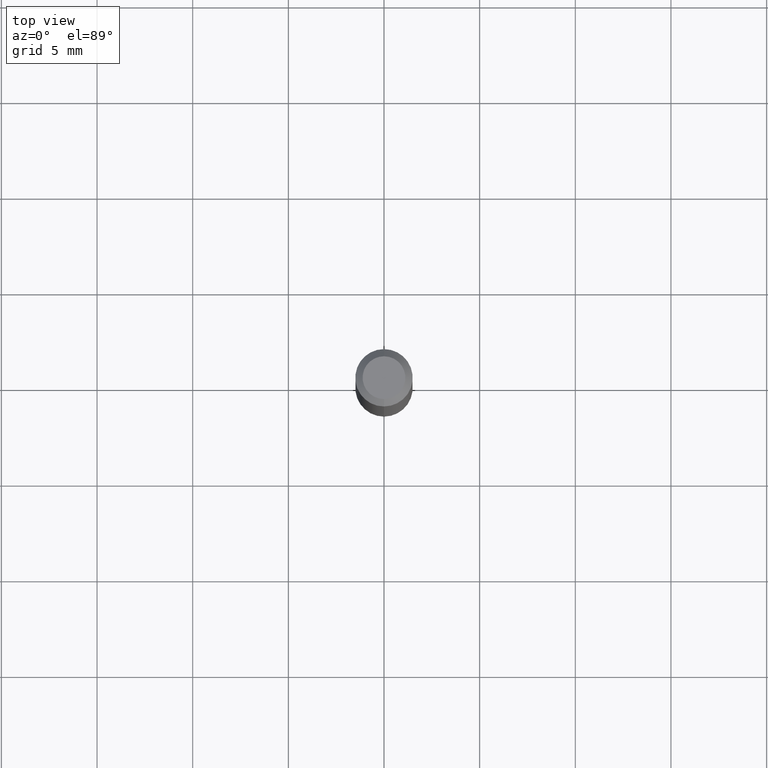
[diagram: clean part render]
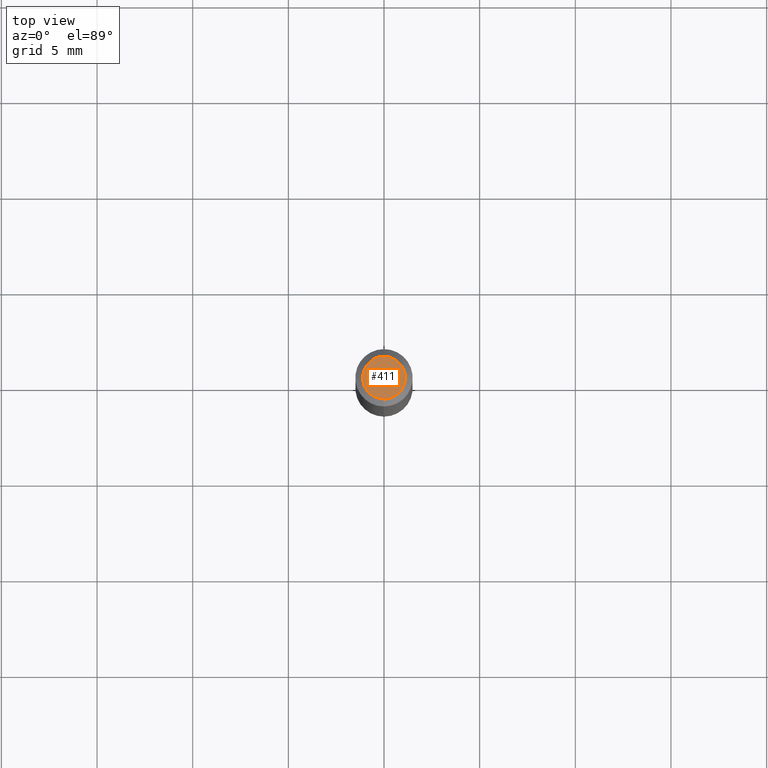
[diagram: same view with one face highlighted and labeled with its STEP entity id]
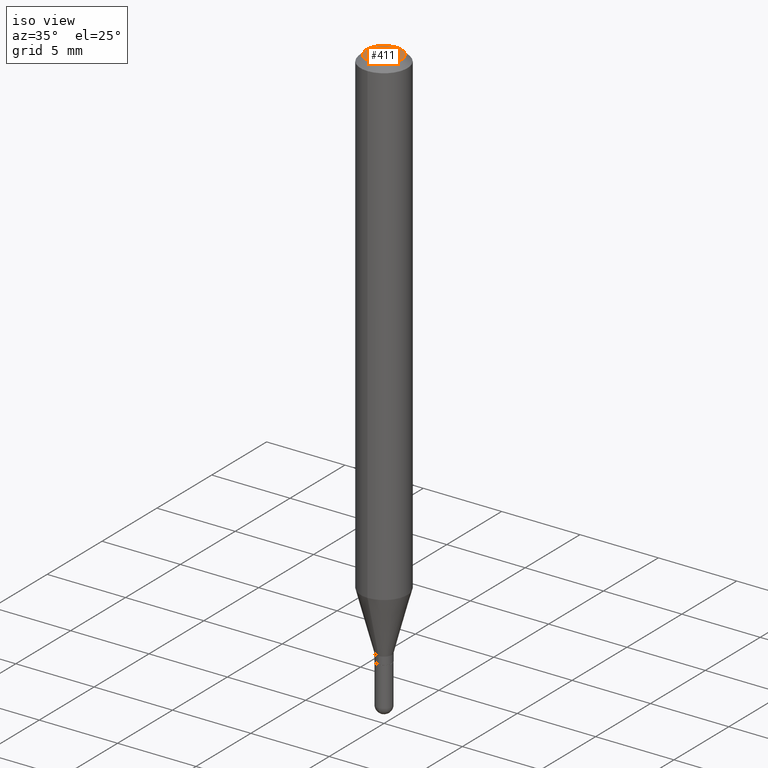
[diagram: same view with one face highlighted and labeled with its STEP entity id]
A machine part, top view. The second image highlights one B-rep face of the part: STEP entity #411.
A second angle (iso view) of the same face is appended — the face is thin or edge-on in the first view.
In plain terms, the highlighted planar face has unit normal (0, -0, -1).
Its self-contained STEP definition (entity closure, byte-faithful):
#4 = EDGE_CURVE ( 'NONE', #191, #498, #394, .T. ) ;
#48 = AXIS2_PLACEMENT_3D ( 'NONE', #88, #126, #160 ) ;
#56 = CARTESIAN_POINT ( 'NONE',  ( 5.838220061560797659E-46, -8.334364404613009200E-32, -2.387209805518527816E-17 ) ) ;
#61 = DIRECTION ( 'NONE',  ( -6.982962677686265133E-15, -1.000000000000000000, 3.491257611855652389E-15 ) ) ;
#83 = CARTESIAN_POINT ( 'NONE',  ( 3.599717260347271507E-16, 0.04404999999999999888, -1.776619958574267450E-16 ) ) ;
#88 = CARTESIAN_POINT ( 'NONE',  ( 5.838220061560797659E-46, -8.334364404613009200E-32, -2.387209805518527816E-17 ) ) ;
#101 = ORIENTED_EDGE ( 'NONE', *, *, #4, .T. ) ;
#126 = DIRECTION ( 'NONE',  ( -2.445625033905502397E-29, 3.491257611855651995E-15, 1.000000000000000000 ) ) ;
#134 = CIRCLE ( 'NONE', #402, 0.04404999999999999888 ) ;
#152 = DIRECTION ( 'NONE',  ( 6.982962677686265922E-15, 1.000000000000000000, -3.491257611855652389E-15 ) ) ;
#160 = DIRECTION ( 'NONE',  ( -6.982962677686265133E-15, -1.000000000000000000, 3.491257611855652389E-15 ) ) ;
#180 = DIRECTION ( 'NONE',  ( 2.445625033905501836E-29, -3.491257611855652389E-15, -1.000000000000000000 ) ) ;
#182 = ORIENTED_EDGE ( 'NONE', *, *, #305, .T. ) ;
#191 = VERTEX_POINT ( 'NONE', #213 ) ;
#213 = CARTESIAN_POINT ( 'NONE',  ( -3.536586717851222218E-16, -0.04404999999999999888, 1.299177997470561887E-16 ) ) ;
#224 = DIRECTION ( 'NONE',  ( -2.445625033905502397E-29, 3.491257611855651995E-15, 1.000000000000000000 ) ) ;
#229 = FACE_OUTER_BOUND ( 'NONE', #370, .T. ) ;
#305 = EDGE_CURVE ( 'NONE', #498, #191, #134, .T. ) ;
#370 = EDGE_LOOP ( 'NONE', ( #182, #101 ) ) ;
#394 = CIRCLE ( 'NONE', #48, 0.04404999999999999888 ) ;
#396 = AXIS2_PLACEMENT_3D ( 'NONE', #466, #180, #152 ) ;
#402 = AXIS2_PLACEMENT_3D ( 'NONE', #56, #224, #61 ) ;
#411 = ADVANCED_FACE ( 'NONE', ( #229 ), #417, .F. ) ;
#417 = PLANE ( 'NONE',  #396 ) ;
#466 = CARTESIAN_POINT ( 'NONE',  ( 3.075995059520799729E-16, 0.04404999999999999888, -1.657259468298341121E-16 ) ) ;
#498 = VERTEX_POINT ( 'NONE', #83 ) ;